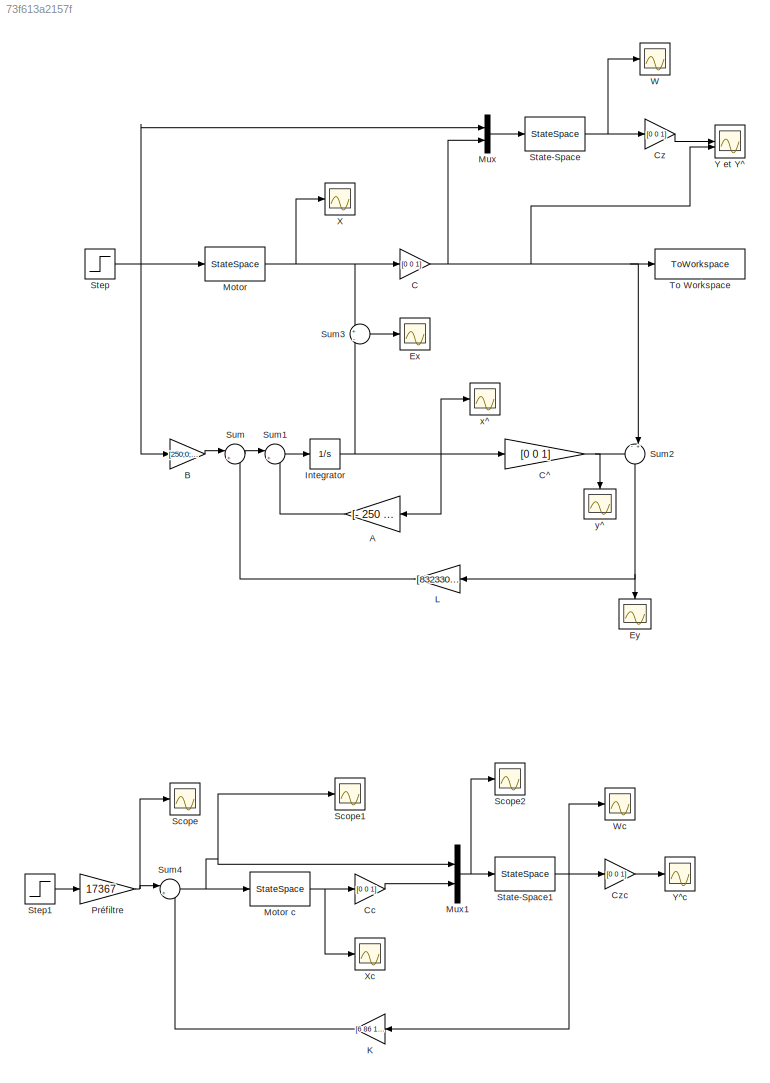
MODEL slx_73f613a2157f
KIND model
CONFIG AbsTol = auto
CONFIG EnableMultiTasking = off
CONFIG FixedStep = auto
CONFIG MaxStep = auto
CONFIG MinStep = auto
CONFIG RelTol = 1e-3
CONFIG SampleTimeConstraint = Unconstrained
CONFIG SolverName = VariableStepAuto
CONFIG StartTime = 0.0
CONFIG StopTime = 10.0
BLOCK [Gain] A
  Gain = [- 250 -25 0; 50 -1.5 0; 0 1 0]
  Multiplication = Matrix(K*u) (u vector)
BLOCK [Gain] B
  Gain = [250;0;0]
  Multiplication = Matrix(K*u) (u vector)
BLOCK [Gain] C
  Gain = [0 0 1]
  Multiplication = Matrix(K*u) (u vector)
BLOCK [Gain] C^ 
  Gain = [0 0 1]
  Multiplication = Matrix(K*u) (u vector)
BLOCK [Gain] Cc
  Gain = [0 0 1]
  Multiplication = Matrix(K*u) (u vector)
BLOCK [Gain] Cz
  Gain = [0 0 1]
  Multiplication = Matrix(K*u) (u vector)
BLOCK [Gain] Czc
  Gain = [0 0 1]
  Multiplication = Matrix(K*u) (u vector)
BLOCK [Scope] Ex
  Floating = off
  NumInputPorts = 1
  ScopeSpecificationString = Simulink.scopes.TimeScopeBlockCfg('CurrentConfiguration', extmgr.ConfigurationSet(extmgr.Configuration('Core','General UI',true),extmgr.Configuration('Core','Source UI',true),extmgr.Configuration('Sources','WiredSimulink',true,'DataLoggingVariableName','ScopeData3'),extmgr.Configuration('Visuals','Time Domain',true,'SerializedDisplays',{struct('MinYLimReal','-4.31526','MaxYLimReal','3.85886','YLab...<+1491ch>
BLOCK [Scope] Ey
  Floating = off
  NameLocation = left
  NumInputPorts = 1
  ScopeSpecificationString = Simulink.scopes.TimeScopeBlockCfg('CurrentConfiguration', extmgr.ConfigurationSet(extmgr.Configuration('Core','General UI',true),extmgr.Configuration('Core','Source UI',true),extmgr.Configuration('Sources','WiredSimulink',true,'DataLoggingVariableName','ScopeData1'),extmgr.Configuration('Visuals','Time Domain',true,'SerializedDisplays',{struct('MinYLimReal','-0.00912','MaxYLimReal','0.03435','YLab...<+1452ch>
BLOCK [Integrator] Integrator
BLOCK [Gain] K
  Gain = [6 86 17367]
  Multiplication = Matrix(K*u) (u vector)
  NameLocation = top
BLOCK [Gain] L
  Gain = [832330; 691770; 1550]
  Multiplication = Matrix(K*u) (u vector)
BLOCK [StateSpace] Motor
  A = [- 250 -25 0; 50 -1.5 0; 0 1 0]
  B = [250;0;0]
  C = [1 0 0; 0 1 0; 0 0 1]
  D = [0;0;0]
  InitialCondition = [0.01;0.02;0.03]
BLOCK [StateSpace] Motor c
  A = [- 250 -25 0; 50 -1.5 0; 0 1 0]
  B = [250;0;0]
  C = [1 0 0; 0 1 0; 0 0 1]
  D = [0;0;0]
  InitialCondition = [0.01;0.02;0.03]
BLOCK [Mux] Mux
  DisplayOption = bar
  Inputs = 2
BLOCK [Mux] Mux1
  DisplayOption = bar
  Inputs = 2
BLOCK [Gain] Préfiltre
  Gain = 17367
BLOCK [Scope] Scope
  Floating = off
  NumInputPorts = 1
  ScopeSpecificationString = Simulink.scopes.TimeScopeBlockCfg('CurrentConfiguration', extmgr.ConfigurationSet(extmgr.Configuration('Core','General UI',true),extmgr.Configuration('Core','Source UI',true),extmgr.Configuration('Sources','WiredSimulink',true,'DataLoggingVariableName','ScopeData9'),extmgr.Configuration('Visuals','Time Domain',true),extmgr.Configuration('Tools','Plot Navigation',true),extmgr.Configuration('Tools',...<+40ch>
BLOCK [Scope] Scope1
  Floating = off
  NumInputPorts = 1
  ScopeSpecificationString = Simulink.scopes.TimeScopeBlockCfg('CurrentConfiguration', extmgr.ConfigurationSet(extmgr.Configuration('Core','General UI',true),extmgr.Configuration('Core','Source UI',true),extmgr.Configuration('Sources','WiredSimulink',true,'DataLoggingVariableName','ScopeData10'),extmgr.Configuration('Visuals','Time Domain',true),extmgr.Configuration('Tools','Plot Navigation',true),extmgr.Configuration('Tools'...<+41ch>
BLOCK [Scope] Scope2
  Floating = off
  NumInputPorts = 1
  ScopeSpecificationString = Simulink.scopes.TimeScopeBlockCfg('CurrentConfiguration', extmgr.ConfigurationSet(extmgr.Configuration('Core','General UI',true),extmgr.Configuration('Core','Source UI',true),extmgr.Configuration('Sources','WiredSimulink',true,'DataLoggingVariableName','ScopeData11'),extmgr.Configuration('Visuals','Time Domain',true),extmgr.Configuration('Tools','Plot Navigation',true),extmgr.Configuration('Tools'...<+41ch>
BLOCK [StateSpace] State-Space
  A = [-250 -30 -832330; 50 -1.5 -691770; 0 1 -1550]
  B = [250 832330; 0 691770; 0 1550]
  C = [1 0 0; 0 1 0; 0 0 1]
  D = [0 0; 0 0; 0 0]
  InitialCondition = 0
BLOCK [StateSpace] State-Space1
  A = [-250 -30 -832330; 50 -1.5 -691770; 0 1 -1550]
  B = [250 832330; 0 691770; 0 1550]
  C = [1 0 0; 0 1 0; 0 0 1]
  D = [0 0; 0 0; 0 0]
  InitialCondition = 0
BLOCK [Step] Step
  SampleTime = 0
BLOCK [Step] Step1
  SampleTime = 0
BLOCK [Sum] Sum
  Inputs = |++
BLOCK [Sum] Sum1
  Inputs = |++
BLOCK [Sum] Sum2
  Inputs = -+|
  NameLocation = left
BLOCK [Sum] Sum3
  Inputs = +|-
BLOCK [Sum] Sum4
  Inputs = |+-
BLOCK [ToWorkspace] To Workspace
  FixptAsFi = on
  MaxDataPoints = inf
  SampleTime = -1
  SaveFormat = Timeseries
  VariableName = simout
BLOCK [Scope] W
  Floating = off
  NumInputPorts = 1
  ScopeSpecificationString = Simulink.scopes.TimeScopeBlockCfg('CurrentConfiguration', extmgr.ConfigurationSet(extmgr.Configuration('Core','General UI',true),extmgr.Configuration('Core','Source UI',true),extmgr.Configuration('Sources','WiredSimulink',true,'DataLoggingVariableName','ScopeData4'),extmgr.Configuration('Visuals','Time Domain',true,'SerializedDisplays',{struct('MinYLimReal','-12.56503','MaxYLimReal','77.03346','YL...<+1525ch>
BLOCK [Scope] Wc
  Floating = off
  NumInputPorts = 1
  ScopeSpecificationString = Simulink.scopes.TimeScopeBlockCfg('CurrentConfiguration', extmgr.ConfigurationSet(extmgr.Configuration('Core','General UI',true),extmgr.Configuration('Core','Source UI',true),extmgr.Configuration('Sources','WiredSimulink',true,'DataLoggingVariableName','ScopeData6'),extmgr.Configuration('Visuals','Time Domain',true,'SerializedDisplays',{struct('MinYLimReal','-863.89486','MaxYLimReal','1935.84364',...<+1540ch>
BLOCK [Scope] X
  Floating = off
  NumInputPorts = 1
  ScopeSpecificationString = Simulink.scopes.TimeScopeBlockCfg('CurrentConfiguration', extmgr.ConfigurationSet(extmgr.Configuration('Core','General UI',true),extmgr.Configuration('Core','Source UI',true),extmgr.Configuration('Sources','WiredSimulink',true,'DataLoggingVariableName','ScopeData2'),extmgr.Configuration('Visuals','Time Domain',true,'SerializedDisplays',{struct('MinYLimReal','-8.51139','MaxYLimReal','76.58307','YLa...<+1506ch>
BLOCK [Scope] Xc
  Floating = off
  NumInputPorts = 1
  ScopeSpecificationString = Simulink.scopes.TimeScopeBlockCfg('CurrentConfiguration', extmgr.ConfigurationSet(extmgr.Configuration('Core','General UI',true),extmgr.Configuration('Core','Source UI',true),extmgr.Configuration('Sources','WiredSimulink',true,'DataLoggingVariableName','ScopeData7'),extmgr.Configuration('Visuals','Time Domain',true,'SerializedDisplays',{struct('MinYLimReal','-8.51138','MaxYLimReal','76.58307','YLa...<+1506ch>
BLOCK [Scope] Y et Y^
  Floating = off
  NumInputPorts = 2
  ScopeSpecificationString = Simulink.scopes.TimeScopeBlockCfg('CurrentConfiguration', extmgr.ConfigurationSet(extmgr.Configuration('Core','General UI',true),extmgr.Configuration('Core','Source UI',true),extmgr.Configuration('Sources','WiredSimulink',true,'DataLoggingVariableName','ScopeData5'),extmgr.Configuration('Visuals','Time Domain',true,'SerializedDisplays',{struct('MinYLimReal','-8.5053','MaxYLimReal','76.54769','YLab...<+1511ch>
BLOCK [Scope] Y^c
  Floating = off
  NumInputPorts = 1
  ScopeSpecificationString = Simulink.scopes.TimeScopeBlockCfg('CurrentConfiguration', extmgr.ConfigurationSet(extmgr.Configuration('Core','General UI',true),extmgr.Configuration('Core','Source UI',true),extmgr.Configuration('Sources','WiredSimulink',true,'DataLoggingVariableName','ScopeData8'),extmgr.Configuration('Visuals','Time Domain',true,'SerializedDisplays',{struct('MinYLimReal','-8.50877','MaxYLimReal','76.57895','YLa...<+1513ch>
BLOCK [Scope] x^
  Floating = off
  NumInputPorts = 1
  ScopeSpecificationString = Simulink.scopes.TimeScopeBlockCfg('CurrentConfiguration', extmgr.ConfigurationSet(extmgr.Configuration('Core','General UI',true),extmgr.Configuration('Core','Source UI',true),extmgr.Configuration('Sources','WiredSimulink',true),extmgr.Configuration('Visuals','Time Domain',true,'SerializedDisplays',{struct('MinYLimReal','-3.51705','MaxYLimReal','40.24154','YLabelReal','','MinYLimMag','0.00000','Max...<+1530ch>
BLOCK [Scope] y^
  Floating = off
  NameLocation = left
  NumInputPorts = 1
  ScopeSpecificationString = Simulink.scopes.TimeScopeBlockCfg('CurrentConfiguration', extmgr.ConfigurationSet(extmgr.Configuration('Core','General UI',true),extmgr.Configuration('Core','Source UI',true),extmgr.Configuration('Sources','WiredSimulink',true,'DataLoggingVariableName','ScopeData1'),extmgr.Configuration('Visuals','Time Domain',true,'SerializedDisplays',{struct('MinYLimReal','-6.75958','MaxYLimReal','10.8943','YLab...<+1499ch>
LINE A:1 -> Sum1:2
LINE B:1 -> Sum:1
NET C:1 -> Mux:2, Sum2:2, To Workspace:1, Y et Y^:2
NET C^ :1 -> Sum2:1, y^:1
LINE Cc:1 -> Mux1:2
LINE Cz:1 -> Y et Y^:1
LINE Czc:1 -> Y^c:1
NET Integrator:1 -> A:1, C^ :1, Sum3:2, x^:1
LINE K:1 -> Sum4:2
LINE L:1 -> Sum:2
NET Motor c:1 -> Cc:1, Xc:1
NET Motor:1 -> C:1, Sum3:1, X:1
NET Mux1:1 -> Scope2:1, State-Space1:1
LINE Mux:1 -> State-Space:1
NET Préfiltre:1 -> Scope:1, Sum4:1
NET State-Space1:1 -> Czc:1, K:1, Wc:1
NET State-Space:1 -> Cz:1, W:1
LINE Step1:1 -> Préfiltre:1
NET Step:1 -> B:1, Motor:1, Mux:1
LINE Sum1:1 -> Integrator:1
NET Sum2:1 -> Ey:1, L:1
LINE Sum3:1 -> Ex:1
NET Sum4:1 -> Motor c:1, Mux1:1, Scope1:1
LINE Sum:1 -> Sum1:1
note: NET lines group one-source signal fan-out (src -> all destinations, sorted); 1:1 wires keep LINE
